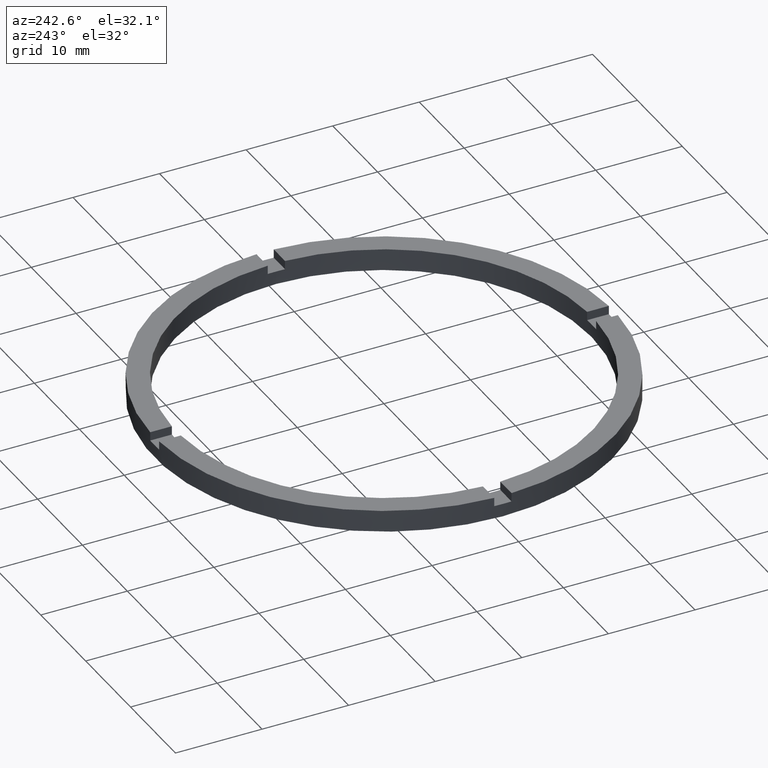
[diagram: clean part render]
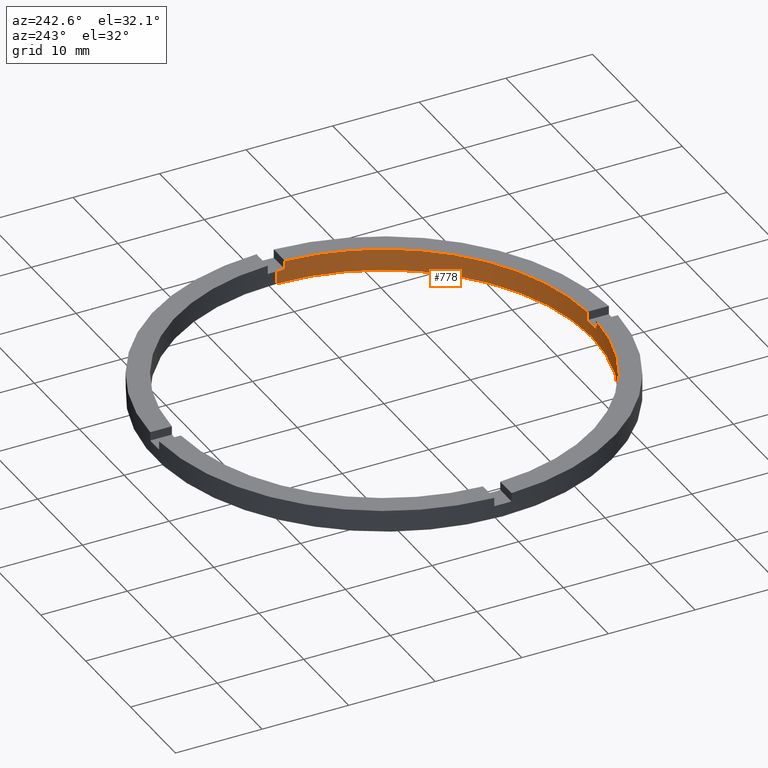
[diagram: same view with one face highlighted and labeled with its STEP entity id]
A machine part, auxiliary view. The second image highlights one B-rep face of the part: STEP entity #778.
In plain terms, the highlighted cylindrical surface (partial cylindrical patch) has radius 24 mm, axis along (-0, -0, -1).
Its self-contained STEP definition (entity closure, byte-faithful):
#13 = CARTESIAN_POINT ( 'NONE',  ( -24.00000000000000355, 0.000000000000000000, 1.500000000000000000 ) ) ;
#20 = DIRECTION ( 'NONE',  ( -0.000000000000000000, -0.000000000000000000, -1.000000000000000000 ) ) ;
#35 = EDGE_CURVE ( 'NONE', #588, #591, #499, .T. ) ;
#44 = CARTESIAN_POINT ( 'NONE',  ( 0.000000000000000000, 0.000000000000000000, 2.500000000000000000 ) ) ;
#63 = ORIENTED_EDGE ( 'NONE', *, *, #72, .T. ) ;
#68 = EDGE_CURVE ( 'NONE', #83, #386, #193, .T. ) ;
#72 = EDGE_CURVE ( 'NONE', #598, #116, #170, .T. ) ;
#73 = DIRECTION ( 'NONE',  ( 0.000000000000000000, 0.000000000000000000, 1.000000000000000000 ) ) ;
#83 = VERTEX_POINT ( 'NONE', #217 ) ;
#89 = CARTESIAN_POINT ( 'NONE',  ( -1.000000000000160760, -23.97915761656359734, 1.500000000000000000 ) ) ;
#92 = ORIENTED_EDGE ( 'NONE', *, *, #463, .T. ) ;
#94 = EDGE_LOOP ( 'NONE', ( #92, #256, #636, #355, #348, #615, #63, #104, #571, #318, #604, #378 ) ) ;
#104 = ORIENTED_EDGE ( 'NONE', *, *, #382, .F. ) ;
#110 = CARTESIAN_POINT ( 'NONE',  ( -24.00000000000000355, 0.000000000000000000, 2.500000000000000000 ) ) ;
#116 = VERTEX_POINT ( 'NONE', #522 ) ;
#134 = DIRECTION ( 'NONE',  ( 1.000000000000000000, 0.000000000000000000, 0.000000000000000000 ) ) ;
#135 = CARTESIAN_POINT ( 'NONE',  ( 0.9999999999998393507, -23.97915761656361155, 2.500000000000000000 ) ) ;
#140 = AXIS2_PLACEMENT_3D ( 'NONE', #210, #443, #519 ) ;
#156 = EDGE_CURVE ( 'NONE', #370, #591, #457, .T. ) ;
#157 = CARTESIAN_POINT ( 'NONE',  ( 23.97915761656359734, -1.000000000000157208, 1.500000000000000000 ) ) ;
#170 = CIRCLE ( 'NONE', #679, 24.00000000000000355 ) ;
#175 = VECTOR ( 'NONE', #73, 1000.000000000000000 ) ;
#179 = DIRECTION ( 'NONE',  ( -0.000000000000000000, -0.000000000000000000, -1.000000000000000000 ) ) ;
#184 = CARTESIAN_POINT ( 'NONE',  ( 0.000000000000000000, 0.000000000000000000, 1.500000000000000000 ) ) ;
#193 = LINE ( 'NONE', #135, #437 ) ;
#196 = CARTESIAN_POINT ( 'NONE',  ( 23.97915761656359734, -1.000000000000157208, 2.500000000000000000 ) ) ;
#199 = CIRCLE ( 'NONE', #668, 24.00000000000000355 ) ;
#206 = DIRECTION ( 'NONE',  ( -0.000000000000000000, -0.000000000000000000, -1.000000000000000000 ) ) ;
#210 = CARTESIAN_POINT ( 'NONE',  ( 0.000000000000000000, 0.000000000000000000, 1.500000000000000000 ) ) ;
#217 = CARTESIAN_POINT ( 'NONE',  ( 0.9999999999998393507, -23.97915761656361155, 2.500000000000000000 ) ) ;
#219 = CIRCLE ( 'NONE', #596, 24.00000000000000355 ) ;
#239 = LINE ( 'NONE', #568, #245 ) ;
#241 = CIRCLE ( 'NONE', #662, 24.00000000000000355 ) ;
#245 = VECTOR ( 'NONE', #410, 1000.000000000000000 ) ;
#247 = VECTOR ( 'NONE', #206, 1000.000000000000000 ) ;
#253 = VERTEX_POINT ( 'NONE', #89 ) ;
#256 = ORIENTED_EDGE ( 'NONE', *, *, #156, .T. ) ;
#263 = DIRECTION ( 'NONE',  ( 0.000000000000000000, 0.000000000000000000, 1.000000000000000000 ) ) ;
#269 = CARTESIAN_POINT ( 'NONE',  ( 24.00000000000000355, 2.939152317953648289E-15, 2.500000000000000000 ) ) ;
#271 = DIRECTION ( 'NONE',  ( -0.000000000000000000, 0.000000000000000000, 1.000000000000000000 ) ) ;
#292 = EDGE_CURVE ( 'NONE', #253, #386, #199, .T. ) ;
#299 = DIRECTION ( 'NONE',  ( 1.000000000000000000, 0.000000000000000000, 0.000000000000000000 ) ) ;
#318 = ORIENTED_EDGE ( 'NONE', *, *, #68, .F. ) ;
#346 = VERTEX_POINT ( 'NONE', #631 ) ;
#348 = ORIENTED_EDGE ( 'NONE', *, *, #678, .T. ) ;
#353 = AXIS2_PLACEMENT_3D ( 'NONE', #672, #20, #735 ) ;
#355 = ORIENTED_EDGE ( 'NONE', *, *, #536, .F. ) ;
#358 = VERTEX_POINT ( 'NONE', #13 ) ;
#364 = EDGE_CURVE ( 'NONE', #502, #346, #721, .T. ) ;
#370 = VERTEX_POINT ( 'NONE', #508 ) ;
#378 = ORIENTED_EDGE ( 'NONE', *, *, #364, .F. ) ;
#382 = EDGE_CURVE ( 'NONE', #253, #116, #451, .T. ) ;
#384 = DIRECTION ( 'NONE',  ( 0.000000000000000000, 0.000000000000000000, 1.000000000000000000 ) ) ;
#386 = VERTEX_POINT ( 'NONE', #423 ) ;
#409 = AXIS2_PLACEMENT_3D ( 'NONE', #635, #723, #518 ) ;
#410 = DIRECTION ( 'NONE',  ( -0.000000000000000000, -0.000000000000000000, -1.000000000000000000 ) ) ;
#423 = CARTESIAN_POINT ( 'NONE',  ( 0.9999999999998393507, -23.97915761656361155, 1.500000000000000000 ) ) ;
#433 = CARTESIAN_POINT ( 'NONE',  ( -24.00000000000000355, 0.000000000000000000, 0.000000000000000000 ) ) ;
#437 = VECTOR ( 'NONE', #179, 1000.000000000000000 ) ;
#443 = DIRECTION ( 'NONE',  ( 0.000000000000000000, -0.000000000000000000, 1.000000000000000000 ) ) ;
#451 = LINE ( 'NONE', #543, #466 ) ;
#457 = LINE ( 'NONE', #269, #703 ) ;
#463 = EDGE_CURVE ( 'NONE', #502, #370, #708, .T. ) ;
#466 = VECTOR ( 'NONE', #263, 1000.000000000000000 ) ;
#479 = FACE_OUTER_BOUND ( 'NONE', #94, .T. ) ;
#499 = CIRCLE ( 'NONE', #409, 24.00000000000000355 ) ;
#502 = VERTEX_POINT ( 'NONE', #157 ) ;
#508 = CARTESIAN_POINT ( 'NONE',  ( 24.00000000000000355, 2.939152317953648289E-15, 1.500000000000000000 ) ) ;
#512 = CARTESIAN_POINT ( 'NONE',  ( 24.00000000000000355, 2.939152317953648289E-15, 0.000000000000000000 ) ) ;
#518 = DIRECTION ( 'NONE',  ( 1.000000000000000000, 0.000000000000000000, 0.000000000000000000 ) ) ;
#519 = DIRECTION ( 'NONE',  ( 1.000000000000000000, 0.000000000000000000, 0.000000000000000000 ) ) ;
#522 = CARTESIAN_POINT ( 'NONE',  ( -1.000000000000160760, -23.97915761656359734, 2.500000000000000000 ) ) ;
#536 = EDGE_CURVE ( 'NONE', #358, #588, #755, .T. ) ;
#543 = CARTESIAN_POINT ( 'NONE',  ( -1.000000000000160760, -23.97915761656359734, 2.500000000000000000 ) ) ;
#555 = CARTESIAN_POINT ( 'NONE',  ( -23.97915761656360445, -1.000000000000025979, 2.500000000000000000 ) ) ;
#568 = CARTESIAN_POINT ( 'NONE',  ( -23.97915761656360445, -1.000000000000025979, 2.500000000000000000 ) ) ;
#571 = ORIENTED_EDGE ( 'NONE', *, *, #292, .T. ) ;
#588 = VERTEX_POINT ( 'NONE', #433 ) ;
#591 = VERTEX_POINT ( 'NONE', #512 ) ;
#596 = AXIS2_PLACEMENT_3D ( 'NONE', #44, #632, #299 ) ;
#598 = VERTEX_POINT ( 'NONE', #555 ) ;
#604 = ORIENTED_EDGE ( 'NONE', *, *, #761, .T. ) ;
#609 = CARTESIAN_POINT ( 'NONE',  ( 0.000000000000000000, 0.000000000000000000, 1.500000000000000000 ) ) ;
#611 = VERTEX_POINT ( 'NONE', #648 ) ;
#615 = ORIENTED_EDGE ( 'NONE', *, *, #663, .F. ) ;
#621 = CARTESIAN_POINT ( 'NONE',  ( 0.000000000000000000, 0.000000000000000000, 2.500000000000000000 ) ) ;
#631 = CARTESIAN_POINT ( 'NONE',  ( 23.97915761656359734, -1.000000000000157208, 2.500000000000000000 ) ) ;
#632 = DIRECTION ( 'NONE',  ( 0.000000000000000000, 0.000000000000000000, 1.000000000000000000 ) ) ;
#635 = CARTESIAN_POINT ( 'NONE',  ( 0.000000000000000000, 0.000000000000000000, 0.000000000000000000 ) ) ;
#636 = ORIENTED_EDGE ( 'NONE', *, *, #35, .F. ) ;
#648 = CARTESIAN_POINT ( 'NONE',  ( -23.97915761656360445, -1.000000000000025979, 1.500000000000000000 ) ) ;
#655 = DIRECTION ( 'NONE',  ( -0.000000000000000000, -0.000000000000000000, -1.000000000000000000 ) ) ;
#662 = AXIS2_PLACEMENT_3D ( 'NONE', #609, #384, #134 ) ;
#663 = EDGE_CURVE ( 'NONE', #598, #611, #239, .T. ) ;
#668 = AXIS2_PLACEMENT_3D ( 'NONE', #184, #271, #681 ) ;
#672 = CARTESIAN_POINT ( 'NONE',  ( 0.000000000000000000, 0.000000000000000000, 2.500000000000000000 ) ) ;
#674 = DIRECTION ( 'NONE',  ( 0.000000000000000000, 0.000000000000000000, 1.000000000000000000 ) ) ;
#678 = EDGE_CURVE ( 'NONE', #358, #611, #241, .T. ) ;
#679 = AXIS2_PLACEMENT_3D ( 'NONE', #621, #674, #736 ) ;
#681 = DIRECTION ( 'NONE',  ( 1.000000000000000000, 0.000000000000000000, 0.000000000000000000 ) ) ;
#703 = VECTOR ( 'NONE', #655, 1000.000000000000000 ) ;
#708 = CIRCLE ( 'NONE', #140, 24.00000000000000355 ) ;
#721 = LINE ( 'NONE', #196, #175 ) ;
#723 = DIRECTION ( 'NONE',  ( 0.000000000000000000, 0.000000000000000000, 1.000000000000000000 ) ) ;
#735 = DIRECTION ( 'NONE',  ( -1.000000000000000000, 0.000000000000000000, 0.000000000000000000 ) ) ;
#736 = DIRECTION ( 'NONE',  ( 1.000000000000000000, 0.000000000000000000, 0.000000000000000000 ) ) ;
#738 = CYLINDRICAL_SURFACE ( 'NONE', #353, 24.00000000000000355 ) ;
#755 = LINE ( 'NONE', #110, #247 ) ;
#761 = EDGE_CURVE ( 'NONE', #83, #346, #219, .T. ) ;
#778 = ADVANCED_FACE ( 'NONE', ( #479 ), #738, .F. ) ;